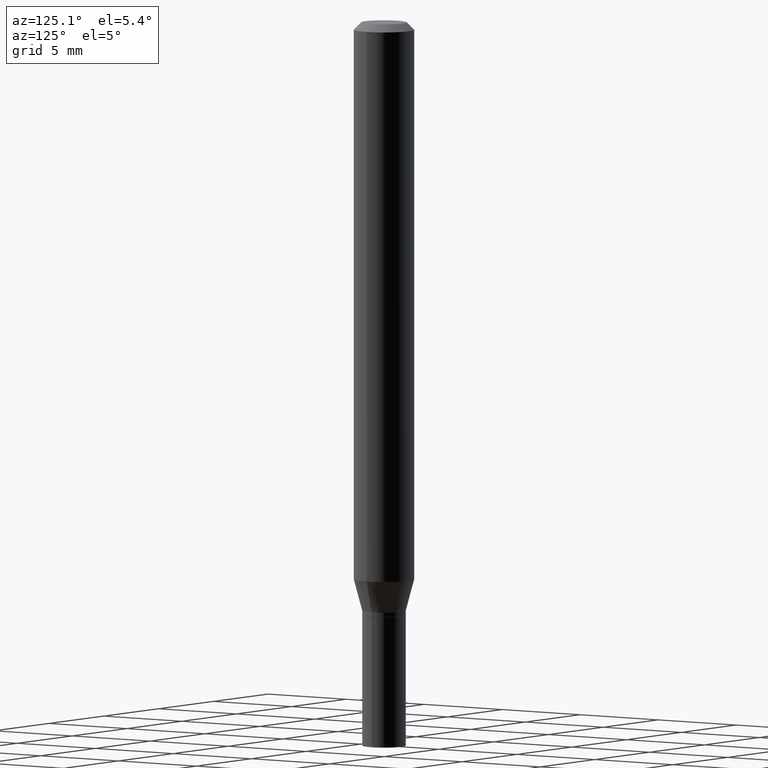
[diagram: clean part render]
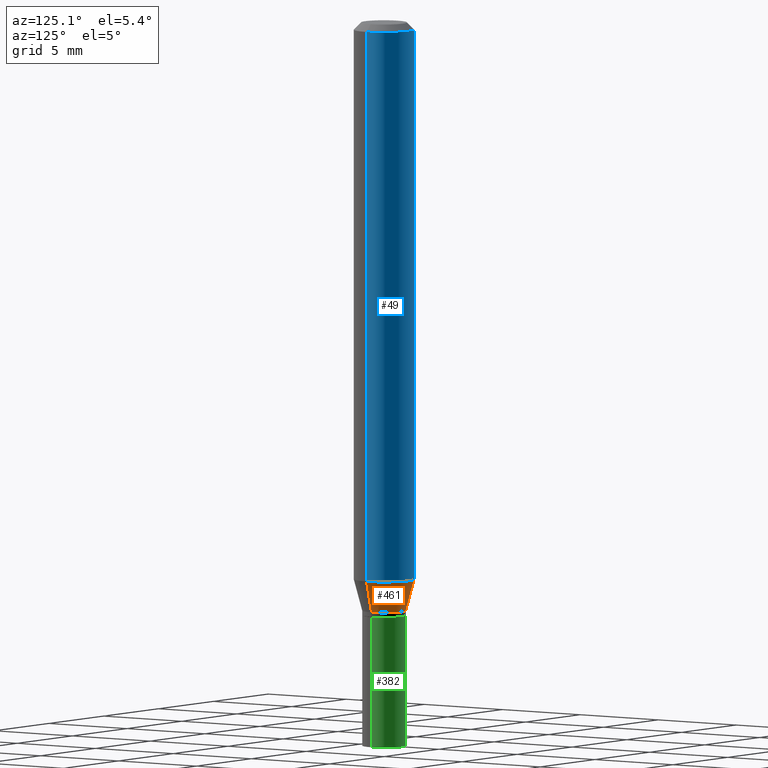
[diagram: same view with three faces highlighted in distinct colors, each labeled with its STEP entity id]
A machine part, auxiliary view with three faces highlighted in distinct colors.
Their STEP definitions:

[orange] entity #461 — the highlighted conical surface has half-angle 15 deg.
#13 = DIRECTION ( 'NONE',  ( 1.000000000000000000, -6.982962677686259611E-15, 0.000000000000000000 ) ) ;
#16 = VERTEX_POINT ( 'NONE', #163 ) ;
#56 = ORIENTED_EDGE ( 'NONE', *, *, #464, .T. ) ;
#65 = CARTESIAN_POINT ( 'NONE',  ( 0.04500000000000019262, -4.573840553884520788E-15, -1.220000000000000195 ) ) ;
#69 = DIRECTION ( 'NONE',  ( 0.2588190451025205174, 1.565188264969628476E-15, 0.9659258262890684232 ) ) ;
#108 = CARTESIAN_POINT ( 'NONE',  ( 0.04500000000000019262, -4.573840553884520788E-15, -1.220000000000000195 ) ) ;
#109 = DIRECTION ( 'NONE',  ( -2.445468806185136597E-29, 3.491481338843145583E-15, 1.000000000000000000 ) ) ;
#144 = CARTESIAN_POINT ( 'NONE',  ( 2.983471943545866670E-29, -4.259607233388637524E-15, -1.220000000000000195 ) ) ;
#154 = LINE ( 'NONE', #377, #410 ) ;
#157 = ORIENTED_EDGE ( 'NONE', *, *, #169, .F. ) ;
#163 = CARTESIAN_POINT ( 'NONE',  ( -0.04500000000000019262, -3.763674637602973398E-15, -1.220000000000000195 ) ) ;
#165 = CIRCLE ( 'NONE', #311, 0.04500000000000019262 ) ;
#169 = EDGE_CURVE ( 'NONE', #319, #454, #326, .T. ) ;
#193 = EDGE_LOOP ( 'NONE', ( #341, #56, #388, #157 ) ) ;
#203 = VERTEX_POINT ( 'NONE', #257 ) ;
#216 = DIRECTION ( 'NONE',  ( 1.000000000000000000, -6.982962677686259611E-15, 0.000000000000000000 ) ) ;
#230 = VECTOR ( 'NONE', #69, 39.37007874015748143 ) ;
#234 = FACE_OUTER_BOUND ( 'NONE', #193, .T. ) ;
#236 = DIRECTION ( 'NONE',  ( -2.445468806185136597E-29, 3.491481338843145583E-15, 1.000000000000000000 ) ) ;
#257 = CARTESIAN_POINT ( 'NONE',  ( -0.06250000000000000000, -3.587486272909356218E-15, -1.154689110867545443 ) ) ;
#263 = EDGE_CURVE ( 'NONE', #454, #203, #330, .T. ) ;
#308 = CARTESIAN_POINT ( 'NONE',  ( 2.823756201468233313E-29, -4.031575482759418834E-15, -1.154689110867545443 ) ) ;
#311 = AXIS2_PLACEMENT_3D ( 'NONE', #144, #109, #216 ) ;
#319 = VERTEX_POINT ( 'NONE', #65 ) ;
#326 = LINE ( 'NONE', #108, #230 ) ;
#330 = CIRCLE ( 'NONE', #437, 0.06250000000000000000 ) ;
#333 = CARTESIAN_POINT ( 'NONE',  ( 0.06250000000000000000, -4.468010650114809714E-15, -1.154689110867545443 ) ) ;
#337 = DIRECTION ( 'NONE',  ( -2.445468806185136597E-29, 3.491481338843145583E-15, 1.000000000000000000 ) ) ;
#341 = ORIENTED_EDGE ( 'NONE', *, *, #346, .T. ) ;
#343 = DIRECTION ( 'NONE',  ( -0.2588190451025205174, 5.211531920934544731E-15, 0.9659258262890684232 ) ) ;
#346 = EDGE_CURVE ( 'NONE', #319, #16, #165, .T. ) ;
#377 = CARTESIAN_POINT ( 'NONE',  ( -0.04500000000000019262, -3.939863002296591368E-15, -1.220000000000000195 ) ) ;
#388 = ORIENTED_EDGE ( 'NONE', *, *, #263, .F. ) ;
#396 = CONICAL_SURFACE ( 'NONE', #448, 0.04500000000000019262, 0.2617993877991491858 ) ;
#410 = VECTOR ( 'NONE', #343, 39.37007874015748143 ) ;
#437 = AXIS2_PLACEMENT_3D ( 'NONE', #308, #337, #439 ) ;
#439 = DIRECTION ( 'NONE',  ( 1.000000000000000000, -6.982962677686270655E-15, 0.000000000000000000 ) ) ;
#448 = AXIS2_PLACEMENT_3D ( 'NONE', #449, #236, #13 ) ;
#449 = CARTESIAN_POINT ( 'NONE',  ( 2.983471943545866670E-29, -4.259607233388637524E-15, -1.220000000000000195 ) ) ;
#454 = VERTEX_POINT ( 'NONE', #333 ) ;
#461 = ADVANCED_FACE ( 'NONE', ( #234 ), #396, .T. ) ;
#464 = EDGE_CURVE ( 'NONE', #16, #203, #154, .T. ) ;

[blue] entity #49 — the highlighted cylindrical surface (edge-blend (fillet) strip) has radius 1.5875 mm, axis along (-0, 0, 1).
#10 = CIRCLE ( 'NONE', #71, 0.06250000000000000000 ) ;
#21 = DIRECTION ( 'NONE',  ( -2.445468806185136597E-29, 3.491481338843145583E-15, 1.000000000000000000 ) ) ;
#27 = VERTEX_POINT ( 'NONE', #202 ) ;
#38 = EDGE_LOOP ( 'NONE', ( #133, #68, #414, #301 ) ) ;
#49 = ADVANCED_FACE ( 'NONE', ( #209 ), #350, .T. ) ;
#64 = EDGE_CURVE ( 'NONE', #235, #27, #10, .T. ) ;
#68 = ORIENTED_EDGE ( 'NONE', *, *, #446, .T. ) ;
#71 = AXIS2_PLACEMENT_3D ( 'NONE', #323, #285, #459 ) ;
#82 = DIRECTION ( 'NONE',  ( -2.445468806185136877E-29, 3.491481338843145188E-15, 1.000000000000000000 ) ) ;
#122 = LINE ( 'NONE', #270, #303 ) ;
#133 = ORIENTED_EDGE ( 'NONE', *, *, #263, .T. ) ;
#141 = CARTESIAN_POINT ( 'NONE',  ( 0.06250000000000000000, -4.888073874380388472E-16, -0.01499999999999999944 ) ) ;
#148 = CARTESIAN_POINT ( 'NONE',  ( 0.06250000000000000000, -4.364351673553916694E-16, 3.047610484872459871E-30 ) ) ;
#164 = DIRECTION ( 'NONE',  ( 1.000000000000000000, -6.982962677686266711E-15, 4.876176775795935793E-29 ) ) ;
#202 = CARTESIAN_POINT ( 'NONE',  ( -0.06250000000000000000, -1.597884641570970340E-15, -0.01499999999999999944 ) ) ;
#203 = VERTEX_POINT ( 'NONE', #257 ) ;
#209 = FACE_OUTER_BOUND ( 'NONE', #38, .T. ) ;
#225 = LINE ( 'NONE', #148, #356 ) ;
#235 = VERTEX_POINT ( 'NONE', #141 ) ;
#257 = CARTESIAN_POINT ( 'NONE',  ( -0.06250000000000000000, -3.587486272909356218E-15, -1.154689110867545443 ) ) ;
#263 = EDGE_CURVE ( 'NONE', #454, #203, #330, .T. ) ;
#270 = CARTESIAN_POINT ( 'NONE',  ( -0.06250000000000000000, 4.440892098500626162E-16, -3.074334431409316114E-30 ) ) ;
#285 = DIRECTION ( 'NONE',  ( -2.445468806185136597E-29, 3.491481338843145583E-15, 1.000000000000000000 ) ) ;
#301 = ORIENTED_EDGE ( 'NONE', *, *, #360, .F. ) ;
#303 = VECTOR ( 'NONE', #82, 39.37007874015748143 ) ;
#308 = CARTESIAN_POINT ( 'NONE',  ( 2.823756201468233313E-29, -4.031575482759418834E-15, -1.154689110867545443 ) ) ;
#323 = CARTESIAN_POINT ( 'NONE',  ( 3.668203209277705088E-31, -5.237222008264718399E-17, -0.01499999999999999944 ) ) ;
#330 = CIRCLE ( 'NONE', #437, 0.06250000000000000000 ) ;
#333 = CARTESIAN_POINT ( 'NONE',  ( 0.06250000000000000000, -4.468010650114809714E-15, -1.154689110867545443 ) ) ;
#337 = DIRECTION ( 'NONE',  ( -2.445468806185136597E-29, 3.491481338843145583E-15, 1.000000000000000000 ) ) ;
#348 = CARTESIAN_POINT ( 'NONE',  ( 0.000000000000000000, 0.000000000000000000, 0.000000000000000000 ) ) ;
#350 = CYLINDRICAL_SURFACE ( 'NONE', #389, 0.06250000000000000000 ) ;
#356 = VECTOR ( 'NONE', #369, 39.37007874015748143 ) ;
#360 = EDGE_CURVE ( 'NONE', #454, #235, #225, .T. ) ;
#369 = DIRECTION ( 'NONE',  ( -2.445468806185136877E-29, 3.491481338843145188E-15, 1.000000000000000000 ) ) ;
#389 = AXIS2_PLACEMENT_3D ( 'NONE', #348, #21, #164 ) ;
#414 = ORIENTED_EDGE ( 'NONE', *, *, #64, .F. ) ;
#437 = AXIS2_PLACEMENT_3D ( 'NONE', #308, #337, #439 ) ;
#439 = DIRECTION ( 'NONE',  ( 1.000000000000000000, -6.982962677686270655E-15, 0.000000000000000000 ) ) ;
#446 = EDGE_CURVE ( 'NONE', #203, #27, #122, .T. ) ;
#454 = VERTEX_POINT ( 'NONE', #333 ) ;
#459 = DIRECTION ( 'NONE',  ( 1.000000000000000000, -6.982962677686266711E-15, 0.000000000000000000 ) ) ;

[green] entity #382 — the highlighted cylindrical surface (edge-blend (fillet) strip) has radius 1.143 mm, axis along (-0, 0, 1).
#7 = LINE ( 'NONE', #290, #72 ) ;
#9 = EDGE_CURVE ( 'NONE', #187, #444, #300, .T. ) ;
#20 = DIRECTION ( 'NONE',  ( 1.000000000000000000, -6.982962677686269077E-15, 0.000000000000000000 ) ) ;
#30 = AXIS2_PLACEMENT_3D ( 'NONE', #167, #139, #20 ) ;
#39 = ORIENTED_EDGE ( 'NONE', *, *, #9, .F. ) ;
#46 = VERTEX_POINT ( 'NONE', #206 ) ;
#61 = VECTOR ( 'NONE', #424, 39.37007874015748143 ) ;
#67 = ORIENTED_EDGE ( 'NONE', *, *, #86, .T. ) ;
#72 = VECTOR ( 'NONE', #186, 39.37007874015748143 ) ;
#84 = CARTESIAN_POINT ( 'NONE',  ( 3.668203209277704895E-29, -5.237222008264718177E-15, -1.500000000000000222 ) ) ;
#86 = EDGE_CURVE ( 'NONE', #245, #444, #135, .T. ) ;
#129 = AXIS2_PLACEMENT_3D ( 'NONE', #84, #383, #322 ) ;
#135 = LINE ( 'NONE', #283, #61 ) ;
#139 = DIRECTION ( 'NONE',  ( -2.445468806185136597E-29, 3.491481338843145583E-15, 1.000000000000000000 ) ) ;
#167 = CARTESIAN_POINT ( 'NONE',  ( 3.007926631607718216E-29, -4.294522046777069173E-15, -1.230000000000000204 ) ) ;
#177 = FACE_OUTER_BOUND ( 'NONE', #450, .T. ) ;
#186 = DIRECTION ( 'NONE',  ( -2.445468806185136877E-29, 3.491481338843145188E-15, 1.000000000000000000 ) ) ;
#187 = VERTEX_POINT ( 'NONE', #328 ) ;
#192 = CARTESIAN_POINT ( 'NONE',  ( -0.04499999999999999833, -4.446127796428848702E-15, -1.230000000000000204 ) ) ;
#199 = CIRCLE ( 'NONE', #129, 0.04499999999999999833 ) ;
#206 = CARTESIAN_POINT ( 'NONE',  ( 0.04499999999999999833, -5.551455328760600652E-15, -1.500000000000000222 ) ) ;
#218 = CARTESIAN_POINT ( 'NONE',  ( 0.000000000000000000, 0.000000000000000000, 0.000000000000000000 ) ) ;
#245 = VERTEX_POINT ( 'NONE', #288 ) ;
#256 = CYLINDRICAL_SURFACE ( 'NONE', #465, 0.04499999999999999833 ) ;
#278 = EDGE_CURVE ( 'NONE', #46, #245, #199, .T. ) ;
#280 = ORIENTED_EDGE ( 'NONE', *, *, #278, .T. ) ;
#283 = CARTESIAN_POINT ( 'NONE',  ( -0.04499999999999999833, 3.197442310920450718E-16, -2.213520790614707560E-30 ) ) ;
#288 = CARTESIAN_POINT ( 'NONE',  ( -0.04499999999999999833, -4.446127796428848702E-15, -1.500000000000000222 ) ) ;
#290 = CARTESIAN_POINT ( 'NONE',  ( 0.04499999999999999833, -3.142333204958819823E-16, 2.194279549108170967E-30 ) ) ;
#300 = CIRCLE ( 'NONE', #30, 0.04499999999999999833 ) ;
#322 = DIRECTION ( 'NONE',  ( 1.000000000000000000, -6.982962677686269077E-15, 0.000000000000000000 ) ) ;
#328 = CARTESIAN_POINT ( 'NONE',  ( 0.04499999999999999833, -4.608755367272951648E-15, -1.230000000000000204 ) ) ;
#331 = DIRECTION ( 'NONE',  ( 1.000000000000000000, -6.982962677686266711E-15, 4.876176775795935793E-29 ) ) ;
#347 = EDGE_CURVE ( 'NONE', #46, #187, #7, .T. ) ;
#351 = ORIENTED_EDGE ( 'NONE', *, *, #347, .F. ) ;
#363 = DIRECTION ( 'NONE',  ( -2.445468806185136597E-29, 3.491481338843145583E-15, 1.000000000000000000 ) ) ;
#382 = ADVANCED_FACE ( 'NONE', ( #177 ), #256, .T. ) ;
#383 = DIRECTION ( 'NONE',  ( -2.445468806185136597E-29, 3.491481338843145583E-15, 1.000000000000000000 ) ) ;
#424 = DIRECTION ( 'NONE',  ( -2.445468806185136877E-29, 3.491481338843145188E-15, 1.000000000000000000 ) ) ;
#444 = VERTEX_POINT ( 'NONE', #192 ) ;
#450 = EDGE_LOOP ( 'NONE', ( #280, #67, #39, #351 ) ) ;
#465 = AXIS2_PLACEMENT_3D ( 'NONE', #218, #363, #331 ) ;